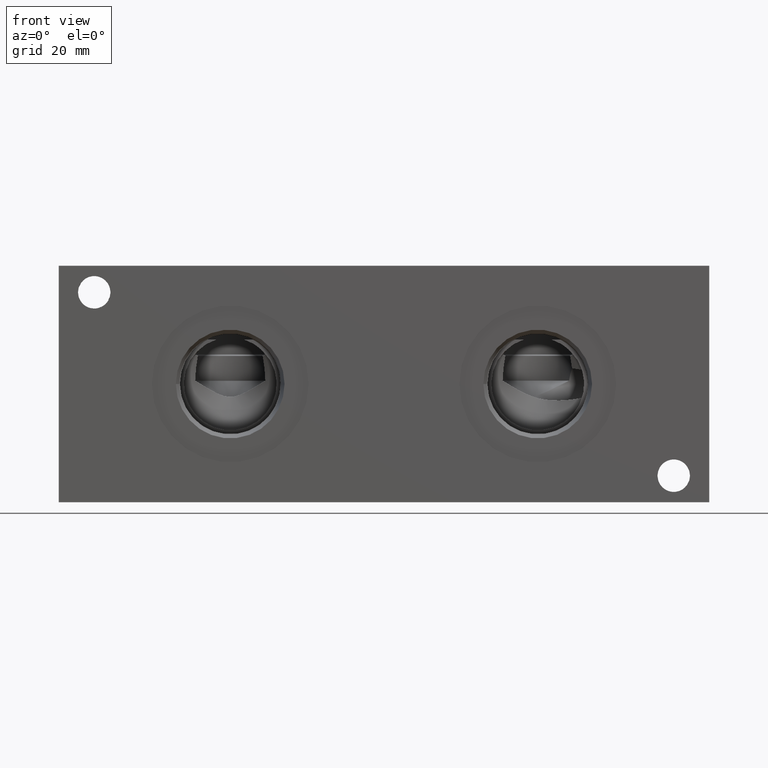
[diagram: clean part render]
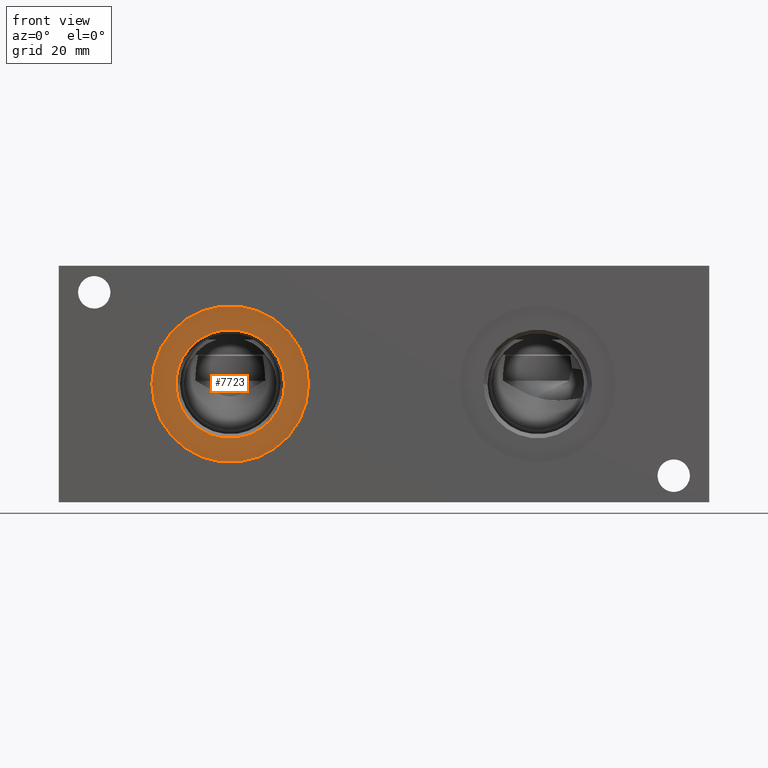
[diagram: same view with one face highlighted and labeled with its STEP entity id]
A machine part, front view. The second image highlights one B-rep face of the part: STEP entity #7723.
In plain terms, the highlighted planar face has unit normal (0, 1, 0).
Its self-contained STEP definition (entity closure, byte-faithful):
#180=CIRCLE('',#8128,21.0185);
#181=CIRCLE('',#8129,21.0185);
#182=CIRCLE('',#8131,14.5923);
#183=CIRCLE('',#8132,14.5923);
#251=FACE_BOUND('',#1392,.T.);
#962=FACE_OUTER_BOUND('',#1391,.T.);
#1391=EDGE_LOOP('',(#6667,#6668));
#1392=EDGE_LOOP('',(#6669,#6670));
#3551=VERTEX_POINT('',#13372);
#3552=VERTEX_POINT('',#13374);
#3553=VERTEX_POINT('',#13378);
#3554=VERTEX_POINT('',#13379);
#4609=EDGE_CURVE('',#3551,#3552,#180,.T.);
#4610=EDGE_CURVE('',#3552,#3551,#181,.T.);
#4611=EDGE_CURVE('',#3553,#3554,#182,.T.);
#4612=EDGE_CURVE('',#3554,#3553,#183,.T.);
#6667=ORIENTED_EDGE('',*,*,#4610,.F.);
#6668=ORIENTED_EDGE('',*,*,#4609,.F.);
#6669=ORIENTED_EDGE('',*,*,#4611,.T.);
#6670=ORIENTED_EDGE('',*,*,#4612,.T.);
#7045=PLANE('',#8130);
#7723=ADVANCED_FACE('',(#962,#251),#7045,.F.);
#8128=AXIS2_PLACEMENT_3D('',#13375,#9610,#9611);
#8129=AXIS2_PLACEMENT_3D('',#13376,#9612,#9613);
#8130=AXIS2_PLACEMENT_3D('',#13377,#9614,#9615);
#8131=AXIS2_PLACEMENT_3D('',#13380,#9616,#9617);
#8132=AXIS2_PLACEMENT_3D('',#13381,#9618,#9619);
#9610=DIRECTION('center_axis',(0.,1.,0.));
#9611=DIRECTION('ref_axis',(1.,0.,0.));
#9612=DIRECTION('center_axis',(0.,1.,0.));
#9613=DIRECTION('ref_axis',(1.,0.,0.));
#9614=DIRECTION('center_axis',(0.,1.,0.));
#9615=DIRECTION('ref_axis',(0.,0.,1.));
#9616=DIRECTION('center_axis',(0.,1.,0.));
#9617=DIRECTION('ref_axis',(1.,0.,0.));
#9618=DIRECTION('center_axis',(0.,1.,0.));
#9619=DIRECTION('ref_axis',(1.,0.,0.));
#13372=CARTESIAN_POINT('',(25.0063,0.7874,31.75));
#13374=CARTESIAN_POINT('',(67.0433,0.7874,31.75));
#13375=CARTESIAN_POINT('Origin',(46.0248,0.7874,31.75));
#13376=CARTESIAN_POINT('Origin',(46.0248,0.7874,31.75));
#13377=CARTESIAN_POINT('Origin',(60.6171,0.7874,31.75));
#13378=CARTESIAN_POINT('',(60.6171,0.7874,31.75));
#13379=CARTESIAN_POINT('',(31.4325,0.787399999999999,31.75));
#13380=CARTESIAN_POINT('Origin',(46.0248,0.7874,31.75));
#13381=CARTESIAN_POINT('Origin',(46.0248,0.7874,31.75));